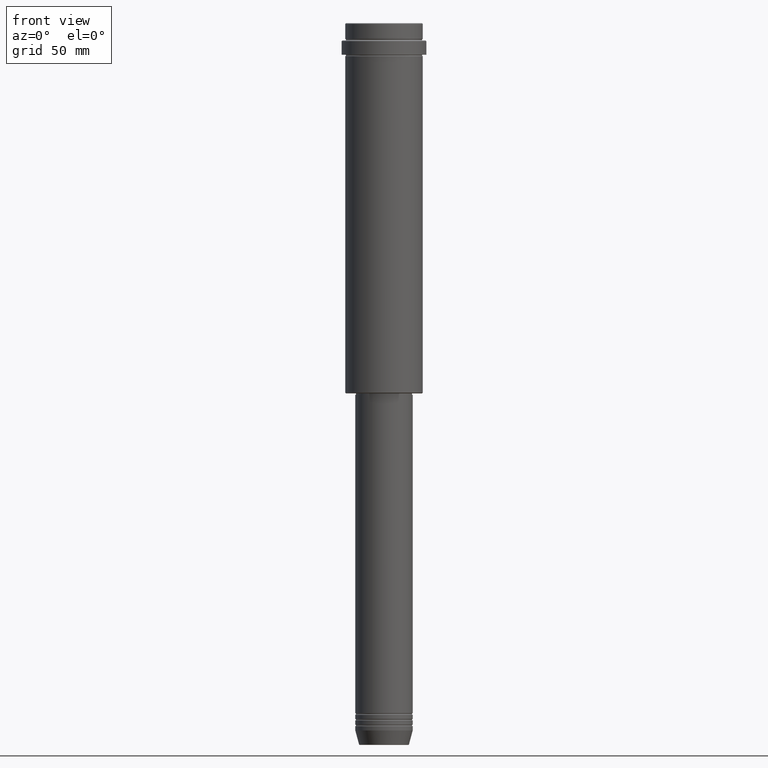
[diagram: clean part render]
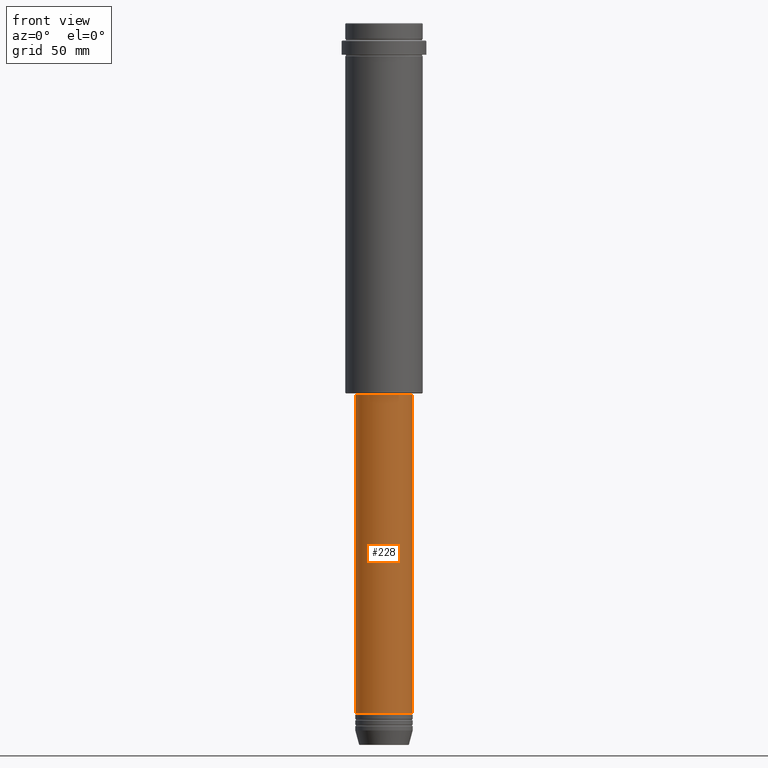
[diagram: same view with one face highlighted and labeled with its STEP entity id]
A machine part, front view. The second image highlights one B-rep face of the part: STEP entity #228.
In plain terms, the highlighted cylindrical surface (edge-blend (fillet) strip) has radius 20 mm, axis along (-0, -0, 1).
Its self-contained STEP definition (entity closure, byte-faithful):
#2 = VECTOR ( 'NONE', #140, 1000.000000000000000 ) ;
#74 = AXIS2_PLACEMENT_3D ( 'NONE', #644, #739, #233 ) ;
#140 = DIRECTION ( 'NONE',  ( -0.000000000000000000, -0.000000000000000000, 1.000000000000000000 ) ) ;
#156 = CARTESIAN_POINT ( 'NONE',  ( 20.00000000000000000, 0.000000000000000000, 0.000000000000000000 ) ) ;
#228 = ADVANCED_FACE ( 'NONE', ( #757 ), #842, .T. ) ;
#233 = DIRECTION ( 'NONE',  ( 1.000000000000000000, 0.000000000000000000, 0.000000000000000000 ) ) ;
#247 = ORIENTED_EDGE ( 'NONE', *, *, #419, .F. ) ;
#249 = DIRECTION ( 'NONE',  ( -0.000000000000000000, -0.000000000000000000, 1.000000000000000000 ) ) ;
#358 = CARTESIAN_POINT ( 'NONE',  ( -20.00000000000000000, 2.449293598294706513E-15, -259.0000000000000000 ) ) ;
#360 = LINE ( 'NONE', #156, #509 ) ;
#384 = CARTESIAN_POINT ( 'NONE',  ( -20.00000000000000000, 2.449293598294706513E-15, -480.9999999999998863 ) ) ;
#388 = EDGE_CURVE ( 'NONE', #706, #488, #1002, .T. ) ;
#419 = EDGE_CURVE ( 'NONE', #488, #758, #1144, .T. ) ;
#488 = VERTEX_POINT ( 'NONE', #358 ) ;
#509 = VECTOR ( 'NONE', #1314, 1000.000000000000000 ) ;
#522 = CARTESIAN_POINT ( 'NONE',  ( 0.000000000000000000, 0.000000000000000000, -480.9999999999998863 ) ) ;
#542 = AXIS2_PLACEMENT_3D ( 'NONE', #792, #249, #1201 ) ;
#624 = VERTEX_POINT ( 'NONE', #1360 ) ;
#644 = CARTESIAN_POINT ( 'NONE',  ( 0.000000000000000000, 0.000000000000000000, 0.000000000000000000 ) ) ;
#706 = VERTEX_POINT ( 'NONE', #384 ) ;
#739 = DIRECTION ( 'NONE',  ( -0.000000000000000000, -0.000000000000000000, 1.000000000000000000 ) ) ;
#757 = FACE_OUTER_BOUND ( 'NONE', #1032, .T. ) ;
#758 = VERTEX_POINT ( 'NONE', #1174 ) ;
#792 = CARTESIAN_POINT ( 'NONE',  ( 0.000000000000000000, 0.000000000000000000, -259.0000000000000000 ) ) ;
#834 = ORIENTED_EDGE ( 'NONE', *, *, #844, .T. ) ;
#835 = EDGE_CURVE ( 'NONE', #706, #624, #1396, .T. ) ;
#842 = CYLINDRICAL_SURFACE ( 'NONE', #74, 20.00000000000000000 ) ;
#844 = EDGE_CURVE ( 'NONE', #624, #758, #360, .T. ) ;
#898 = CARTESIAN_POINT ( 'NONE',  ( -20.00000000000000000, 2.449293598294706513E-15, 0.000000000000000000 ) ) ;
#945 = DIRECTION ( 'NONE',  ( -0.000000000000000000, -0.000000000000000000, 1.000000000000000000 ) ) ;
#985 = ORIENTED_EDGE ( 'NONE', *, *, #835, .T. ) ;
#1002 = LINE ( 'NONE', #898, #2 ) ;
#1032 = EDGE_LOOP ( 'NONE', ( #1190, #985, #834, #247 ) ) ;
#1144 = CIRCLE ( 'NONE', #542, 20.00000000000000000 ) ;
#1174 = CARTESIAN_POINT ( 'NONE',  ( 20.00000000000000000, 0.000000000000000000, -259.0000000000000000 ) ) ;
#1190 = ORIENTED_EDGE ( 'NONE', *, *, #388, .F. ) ;
#1200 = AXIS2_PLACEMENT_3D ( 'NONE', #522, #945, #1400 ) ;
#1201 = DIRECTION ( 'NONE',  ( 1.000000000000000000, 0.000000000000000000, 0.000000000000000000 ) ) ;
#1314 = DIRECTION ( 'NONE',  ( -0.000000000000000000, -0.000000000000000000, 1.000000000000000000 ) ) ;
#1360 = CARTESIAN_POINT ( 'NONE',  ( 20.00000000000000000, 0.000000000000000000, -480.9999999999998863 ) ) ;
#1396 = CIRCLE ( 'NONE', #1200, 20.00000000000000000 ) ;
#1400 = DIRECTION ( 'NONE',  ( 1.000000000000000000, 0.000000000000000000, 0.000000000000000000 ) ) ;